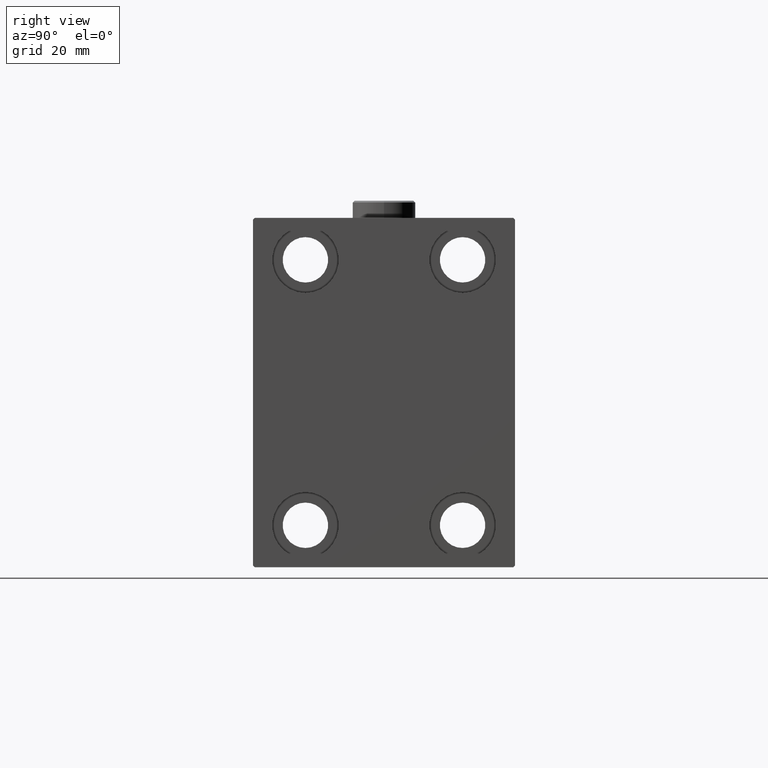
[diagram: clean part render]
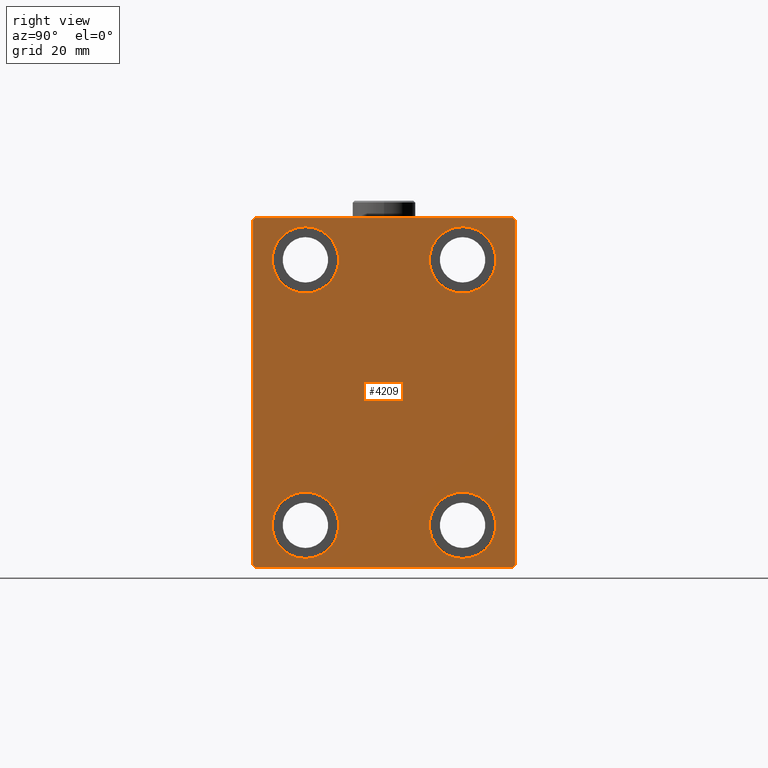
[diagram: same view with one face highlighted and labeled with its STEP entity id]
A machine part, right view. The second image highlights one B-rep face of the part: STEP entity #4209.
In plain terms, the highlighted planar face has unit normal (1, 0, 0).
Its self-contained STEP definition (entity closure, byte-faithful):
#125 = EDGE_CURVE ( 'NONE', #40442, #12520, #5152, .T. ) ;
#144 = CARTESIAN_POINT ( 'NONE',  ( 153.0000000000000000, -22.49999999999999645, 37.99999999999999289 ) ) ;
#180 = EDGE_LOOP ( 'NONE', ( #28694, #25515 ) ) ;
#338 = VECTOR ( 'NONE', #37136, 1000.000000000000000 ) ;
#720 = CARTESIAN_POINT ( 'NONE',  ( 153.0000000000000000, 43.50000000000000711, -43.50000000000000711 ) ) ;
#1094 = VERTEX_POINT ( 'NONE', #26044 ) ;
#1148 = LINE ( 'NONE', #11467, #42428 ) ;
#1787 = LINE ( 'NONE', #44176, #5006 ) ;
#2157 = DIRECTION ( 'NONE',  ( -0.000000000000000000, 0.7071067811865474617, -0.7071067811865474617 ) ) ;
#2165 = ORIENTED_EDGE ( 'NONE', *, *, #39533, .T. ) ;
#2779 = CARTESIAN_POINT ( 'NONE',  ( 153.0000000000000000, 36.99999999999999289, 50.00000000000000711 ) ) ;
#3473 = CARTESIAN_POINT ( 'NONE',  ( 153.0000000000000000, -37.00000000000000711, 49.99999999999999289 ) ) ;
#3729 = ORIENTED_EDGE ( 'NONE', *, *, #6051, .T. ) ;
#4177 = CARTESIAN_POINT ( 'NONE',  ( 153.0000000000000000, -22.49999999999999645, 37.99999999999999289 ) ) ;
#4209 = ADVANCED_FACE ( 'NONE', ( #19706, #15591, #29797, #36209, #8508 ), #44012, .T. ) ;
#4436 = CARTESIAN_POINT ( 'NONE',  ( 153.0000000000000000, 22.50000000000000355, 37.99999999999999289 ) ) ;
#5006 = VECTOR ( 'NONE', #15761, 1000.000000000000000 ) ;
#5152 = LINE ( 'NONE', #44550, #6380 ) ;
#5934 = CARTESIAN_POINT ( 'NONE',  ( 153.0000000000000000, -22.50000000000000711, -37.99999999999999289 ) ) ;
#6051 = EDGE_CURVE ( 'NONE', #13957, #26314, #23973, .T. ) ;
#6125 = CARTESIAN_POINT ( 'NONE',  ( 153.0000000000000000, 22.49999999999999645, -37.99999999999999289 ) ) ;
#6213 = EDGE_LOOP ( 'NONE', ( #20118, #16283 ) ) ;
#6380 = VECTOR ( 'NONE', #2157, 1000.000000000000114 ) ;
#7038 = LINE ( 'NONE', #24901, #10140 ) ;
#7310 = VERTEX_POINT ( 'NONE', #30731 ) ;
#7336 = VERTEX_POINT ( 'NONE', #2779 ) ;
#7768 = VECTOR ( 'NONE', #34649, 1000.000000000000114 ) ;
#7915 = CARTESIAN_POINT ( 'NONE',  ( 153.0000000000000000, 37.50000000000000711, -50.00000000000000000 ) ) ;
#8508 = FACE_OUTER_BOUND ( 'NONE', #23343, .T. ) ;
#8835 = VERTEX_POINT ( 'NONE', #28989 ) ;
#8911 = EDGE_CURVE ( 'NONE', #1094, #7336, #7038, .T. ) ;
#9583 = DIRECTION ( 'NONE',  ( -1.000000000000000000, -0.000000000000000000, -0.000000000000000000 ) ) ;
#10140 = VECTOR ( 'NONE', #20991, 999.9999999999998863 ) ;
#10302 = AXIS2_PLACEMENT_3D ( 'NONE', #19884, #9583, #26982 ) ;
#10709 = CIRCLE ( 'NONE', #35581, 9.500000000000001776 ) ;
#10994 = ORIENTED_EDGE ( 'NONE', *, *, #35624, .T. ) ;
#11126 = ORIENTED_EDGE ( 'NONE', *, *, #11782, .T. ) ;
#11467 = CARTESIAN_POINT ( 'NONE',  ( 153.0000000000000000, -43.50000000000000711, 43.50000000000000711 ) ) ;
#11782 = EDGE_CURVE ( 'NONE', #26314, #13957, #33598, .T. ) ;
#12211 = DIRECTION ( 'NONE',  ( -1.000000000000000000, -0.000000000000000000, -0.000000000000000000 ) ) ;
#12212 = CARTESIAN_POINT ( 'NONE',  ( 153.0000000000000000, -37.50000000000000711, -49.50000000000003553 ) ) ;
#12520 = VERTEX_POINT ( 'NONE', #40313 ) ;
#12526 = DIRECTION ( 'NONE',  ( -1.000000000000000000, -0.000000000000000000, -0.000000000000000000 ) ) ;
#12873 = EDGE_CURVE ( 'NONE', #27619, #30770, #13161, .T. ) ;
#13064 = CARTESIAN_POINT ( 'NONE',  ( 153.0000000000000000, 22.50000000000000355, 28.49999999999998934 ) ) ;
#13161 = CIRCLE ( 'NONE', #40256, 9.500000000000001776 ) ;
#13315 = EDGE_LOOP ( 'NONE', ( #3729, #11126 ) ) ;
#13957 = VERTEX_POINT ( 'NONE', #25172 ) ;
#14107 = DIRECTION ( 'NONE',  ( -1.000000000000000000, -0.000000000000000000, -0.000000000000000000 ) ) ;
#14210 = LINE ( 'NONE', #43067, #43697 ) ;
#14971 = DIRECTION ( 'NONE',  ( 0.000000000000000000, 0.000000000000000000, 1.000000000000000000 ) ) ;
#15591 = FACE_BOUND ( 'NONE', #21256, .T. ) ;
#15670 = ORIENTED_EDGE ( 'NONE', *, *, #21941, .T. ) ;
#15761 = DIRECTION ( 'NONE',  ( 0.000000000000000000, 0.000000000000000000, -1.000000000000000000 ) ) ;
#15769 = EDGE_CURVE ( 'NONE', #7310, #17311, #43230, .T. ) ;
#16283 = ORIENTED_EDGE ( 'NONE', *, *, #12873, .T. ) ;
#17141 = VERTEX_POINT ( 'NONE', #28452 ) ;
#17311 = VERTEX_POINT ( 'NONE', #13064 ) ;
#18099 = AXIS2_PLACEMENT_3D ( 'NONE', #5934, #19900, #34326 ) ;
#18660 = DIRECTION ( 'NONE',  ( 0.000000000000000000, -1.387778780781445676E-16, 1.000000000000000000 ) ) ;
#19344 = ORIENTED_EDGE ( 'NONE', *, *, #33265, .T. ) ;
#19569 = ORIENTED_EDGE ( 'NONE', *, *, #125, .T. ) ;
#19703 = AXIS2_PLACEMENT_3D ( 'NONE', #24196, #20741, #35172 ) ;
#19706 = FACE_BOUND ( 'NONE', #6213, .T. ) ;
#19884 = CARTESIAN_POINT ( 'NONE',  ( 153.0000000000000000, 22.50000000000000355, 37.99999999999999289 ) ) ;
#19900 = DIRECTION ( 'NONE',  ( -1.000000000000000000, -0.000000000000000000, -0.000000000000000000 ) ) ;
#20118 = ORIENTED_EDGE ( 'NONE', *, *, #27733, .T. ) ;
#20300 = CARTESIAN_POINT ( 'NONE',  ( 153.0000000000000000, -22.49999999999999645, 28.49999999999998934 ) ) ;
#20488 = VERTEX_POINT ( 'NONE', #32493 ) ;
#20741 = DIRECTION ( 'NONE',  ( -1.000000000000000000, -0.000000000000000000, -0.000000000000000000 ) ) ;
#20991 = DIRECTION ( 'NONE',  ( -0.000000000000000000, -0.7071067811865425767, 0.7071067811865525687 ) ) ;
#21256 = EDGE_LOOP ( 'NONE', ( #41971, #41199 ) ) ;
#21941 = EDGE_CURVE ( 'NONE', #12520, #17141, #33479, .T. ) ;
#22453 = EDGE_CURVE ( 'NONE', #8835, #42384, #42786, .T. ) ;
#22986 = LINE ( 'NONE', #720, #7768 ) ;
#23343 = EDGE_LOOP ( 'NONE', ( #19344, #2165, #10994, #19569, #15670, #30784, #37021, #32857 ) ) ;
#23973 = CIRCLE ( 'NONE', #18099, 9.500000000000001776 ) ;
#24186 = VECTOR ( 'NONE', #18660, 1000.000000000000000 ) ;
#24196 = CARTESIAN_POINT ( 'NONE',  ( 153.0000000000000000, -22.50000000000000711, -37.99999999999999289 ) ) ;
#24901 = CARTESIAN_POINT ( 'NONE',  ( 153.0000000000000000, 43.50000000000026290, 43.49999999999965894 ) ) ;
#25172 = CARTESIAN_POINT ( 'NONE',  ( 153.0000000000000000, -22.50000000000000711, -47.49999999999999289 ) ) ;
#25515 = ORIENTED_EDGE ( 'NONE', *, *, #15769, .T. ) ;
#26044 = CARTESIAN_POINT ( 'NONE',  ( 153.0000000000000000, 37.49999999999999289, 49.50000000000000000 ) ) ;
#26137 = DIRECTION ( 'NONE',  ( 0.000000000000000000, 0.000000000000000000, -1.000000000000000000 ) ) ;
#26296 = CARTESIAN_POINT ( 'NONE',  ( 153.0000000000000000, 22.49999999999999645, -28.49999999999998934 ) ) ;
#26314 = VERTEX_POINT ( 'NONE', #29950 ) ;
#26982 = DIRECTION ( 'NONE',  ( 0.000000000000000000, 0.000000000000000000, 1.000000000000000000 ) ) ;
#27619 = VERTEX_POINT ( 'NONE', #26296 ) ;
#27733 = EDGE_CURVE ( 'NONE', #30770, #27619, #31217, .T. ) ;
#28452 = CARTESIAN_POINT ( 'NONE',  ( 153.0000000000000000, 37.00000000000000711, -50.00000000000000000 ) ) ;
#28694 = ORIENTED_EDGE ( 'NONE', *, *, #30574, .T. ) ;
#28989 = CARTESIAN_POINT ( 'NONE',  ( 153.0000000000000000, -22.49999999999999645, 47.49999999999999289 ) ) ;
#29113 = CARTESIAN_POINT ( 'NONE',  ( 153.0000000000000000, 0.000000000000000000, 0.000000000000000000 ) ) ;
#29366 = EDGE_CURVE ( 'NONE', #17141, #32692, #22986, .T. ) ;
#29708 = CARTESIAN_POINT ( 'NONE',  ( 153.0000000000000000, 22.49999999999999645, -37.99999999999999289 ) ) ;
#29797 = FACE_BOUND ( 'NONE', #180, .T. ) ;
#29950 = CARTESIAN_POINT ( 'NONE',  ( 153.0000000000000000, -22.50000000000000711, -28.49999999999998934 ) ) ;
#30574 = EDGE_CURVE ( 'NONE', #17311, #7310, #10709, .T. ) ;
#30731 = CARTESIAN_POINT ( 'NONE',  ( 153.0000000000000000, 22.50000000000000355, 47.49999999999999289 ) ) ;
#30770 = VERTEX_POINT ( 'NONE', #31667 ) ;
#30784 = ORIENTED_EDGE ( 'NONE', *, *, #29366, .T. ) ;
#30867 = DIRECTION ( 'NONE',  ( 0.000000000000000000, 0.000000000000000000, 1.000000000000000000 ) ) ;
#31217 = CIRCLE ( 'NONE', #37049, 9.500000000000001776 ) ;
#31229 = AXIS2_PLACEMENT_3D ( 'NONE', #29113, #43776, #26137 ) ;
#31667 = CARTESIAN_POINT ( 'NONE',  ( 153.0000000000000000, 22.49999999999999645, -47.49999999999999289 ) ) ;
#32493 = CARTESIAN_POINT ( 'NONE',  ( 153.0000000000000000, -37.50000000000000711, 49.49999999999999289 ) ) ;
#32692 = VERTEX_POINT ( 'NONE', #36715 ) ;
#32807 = DIRECTION ( 'NONE',  ( 0.000000000000000000, 0.000000000000000000, 1.000000000000000000 ) ) ;
#32857 = ORIENTED_EDGE ( 'NONE', *, *, #8911, .T. ) ;
#32965 = CIRCLE ( 'NONE', #41753, 9.500000000000001776 ) ;
#33265 = EDGE_CURVE ( 'NONE', #7336, #34889, #14210, .T. ) ;
#33479 = LINE ( 'NONE', #40587, #338 ) ;
#33598 = CIRCLE ( 'NONE', #19703, 9.500000000000001776 ) ;
#34295 = DIRECTION ( 'NONE',  ( -1.000000000000000000, -0.000000000000000000, -0.000000000000000000 ) ) ;
#34326 = DIRECTION ( 'NONE',  ( 0.000000000000000000, 0.000000000000000000, 1.000000000000000000 ) ) ;
#34649 = DIRECTION ( 'NONE',  ( -0.000000000000000000, 0.7071067811865474617, 0.7071067811865474617 ) ) ;
#34889 = VERTEX_POINT ( 'NONE', #3473 ) ;
#35172 = DIRECTION ( 'NONE',  ( 0.000000000000000000, 0.000000000000000000, 1.000000000000000000 ) ) ;
#35345 = DIRECTION ( 'NONE',  ( -1.000000000000000000, -0.000000000000000000, -0.000000000000000000 ) ) ;
#35581 = AXIS2_PLACEMENT_3D ( 'NONE', #4436, #12211, #14971 ) ;
#35624 = EDGE_CURVE ( 'NONE', #20488, #40442, #1787, .T. ) ;
#35757 = DIRECTION ( 'NONE',  ( 0.000000000000000000, -0.7071067811865474617, -0.7071067811865474617 ) ) ;
#36209 = FACE_BOUND ( 'NONE', #13315, .T. ) ;
#36533 = DIRECTION ( 'NONE',  ( 0.000000000000000000, 0.000000000000000000, 1.000000000000000000 ) ) ;
#36715 = CARTESIAN_POINT ( 'NONE',  ( 153.0000000000000000, 37.50000000000000711, -49.50000000000000000 ) ) ;
#36916 = AXIS2_PLACEMENT_3D ( 'NONE', #144, #14107, #36533 ) ;
#37020 = DIRECTION ( 'NONE',  ( 0.000000000000000000, 0.000000000000000000, 1.000000000000000000 ) ) ;
#37021 = ORIENTED_EDGE ( 'NONE', *, *, #41816, .T. ) ;
#37049 = AXIS2_PLACEMENT_3D ( 'NONE', #6125, #34295, #30867 ) ;
#37136 = DIRECTION ( 'NONE',  ( 0.000000000000000000, 1.000000000000000000, 9.251858538542970348E-17 ) ) ;
#39411 = DIRECTION ( 'NONE',  ( 0.000000000000000000, -1.000000000000000000, -1.850371707708594316E-16 ) ) ;
#39533 = EDGE_CURVE ( 'NONE', #34889, #20488, #1148, .T. ) ;
#40256 = AXIS2_PLACEMENT_3D ( 'NONE', #29708, #12526, #37020 ) ;
#40313 = CARTESIAN_POINT ( 'NONE',  ( 153.0000000000000000, -37.00000000000003553, -50.00000000000000711 ) ) ;
#40442 = VERTEX_POINT ( 'NONE', #12212 ) ;
#40587 = CARTESIAN_POINT ( 'NONE',  ( 153.0000000000000000, -37.50000000000000711, -50.00000000000000711 ) ) ;
#41199 = ORIENTED_EDGE ( 'NONE', *, *, #22453, .T. ) ;
#41753 = AXIS2_PLACEMENT_3D ( 'NONE', #4177, #35345, #32807 ) ;
#41816 = EDGE_CURVE ( 'NONE', #32692, #1094, #42505, .T. ) ;
#41971 = ORIENTED_EDGE ( 'NONE', *, *, #42068, .T. ) ;
#42068 = EDGE_CURVE ( 'NONE', #42384, #8835, #32965, .T. ) ;
#42384 = VERTEX_POINT ( 'NONE', #20300 ) ;
#42428 = VECTOR ( 'NONE', #35757, 1000.000000000000114 ) ;
#42505 = LINE ( 'NONE', #7915, #24186 ) ;
#42786 = CIRCLE ( 'NONE', #36916, 9.500000000000001776 ) ;
#43067 = CARTESIAN_POINT ( 'NONE',  ( 153.0000000000000000, 37.49999999999999289, 50.00000000000000711 ) ) ;
#43230 = CIRCLE ( 'NONE', #10302, 9.500000000000001776 ) ;
#43697 = VECTOR ( 'NONE', #39411, 1000.000000000000000 ) ;
#43776 = DIRECTION ( 'NONE',  ( 1.000000000000000000, 0.000000000000000000, 0.000000000000000000 ) ) ;
#44012 = PLANE ( 'NONE',  #31229 ) ;
#44176 = CARTESIAN_POINT ( 'NONE',  ( 153.0000000000000000, -37.50000000000000711, 49.99999999999999289 ) ) ;
#44550 = CARTESIAN_POINT ( 'NONE',  ( 153.0000000000000000, -43.50000000000002132, -43.50000000000002132 ) ) ;